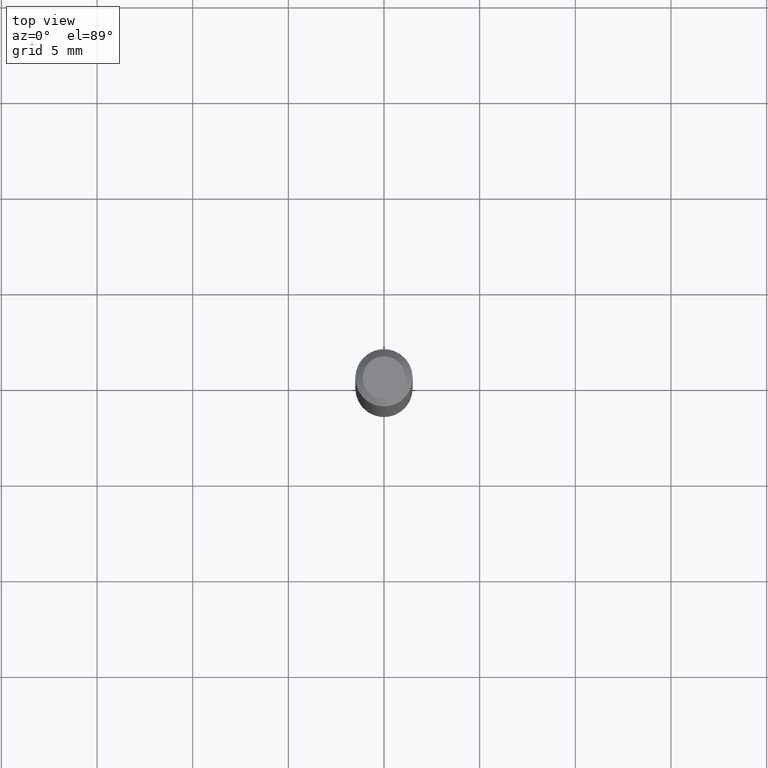
[diagram: clean part render]
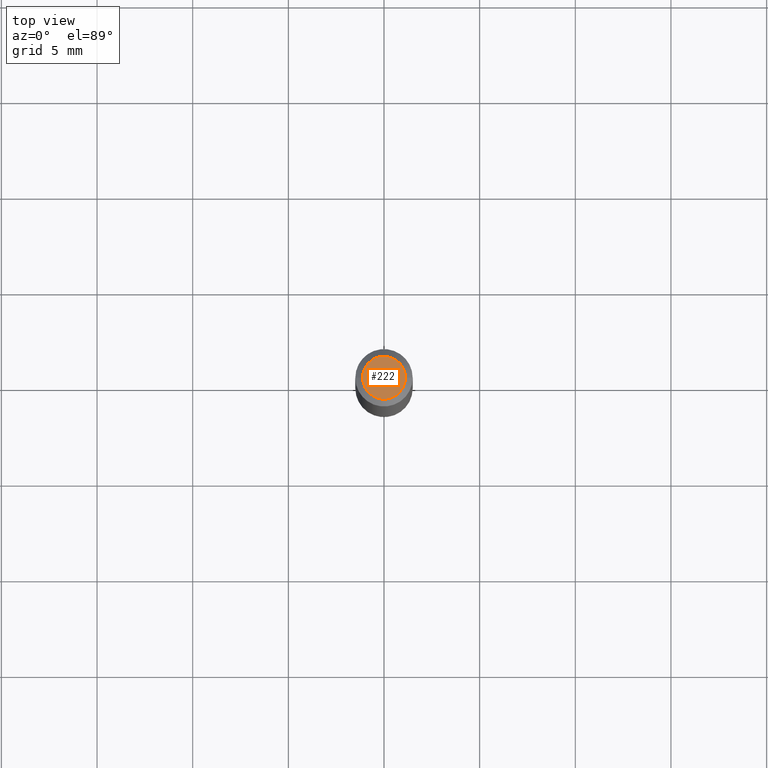
[diagram: same view with one face highlighted and labeled with its STEP entity id]
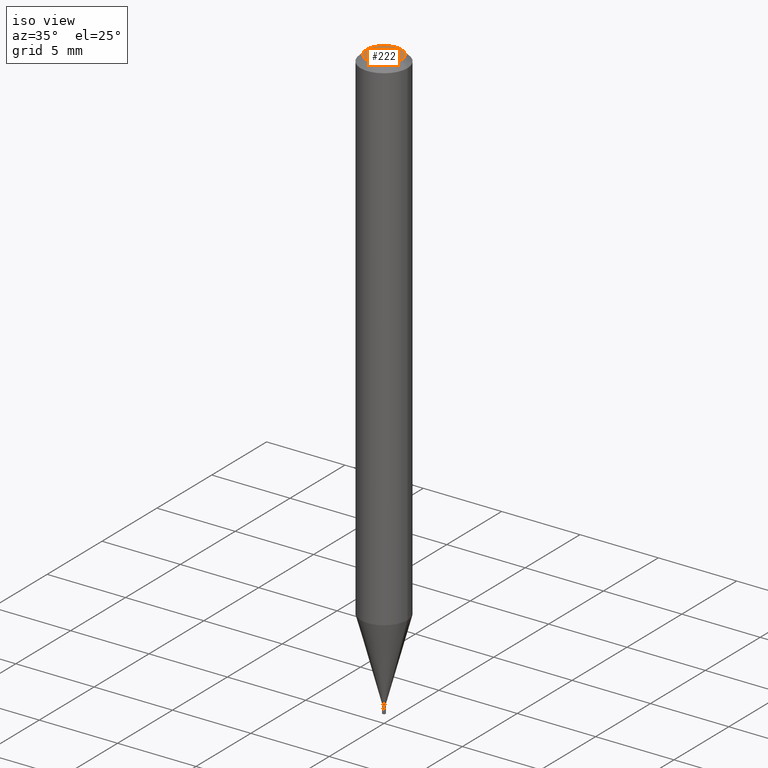
[diagram: same view with one face highlighted and labeled with its STEP entity id]
A machine part, top view. The second image highlights one B-rep face of the part: STEP entity #222.
A second angle (iso view) of the same face is appended — the face is thin or edge-on in the first view.
In plain terms, the highlighted planar face has unit normal (0, -0, -1).
Its self-contained STEP definition (entity closure, byte-faithful):
#16 = AXIS2_PLACEMENT_3D ( 'NONE', #360, #25, #386 ) ;
#25 = DIRECTION ( 'NONE',  ( -2.445468806185136597E-29, 3.491481338843145583E-15, 1.000000000000000000 ) ) ;
#82 = CIRCLE ( 'NONE', #284, 0.04404999999999999888 ) ;
#84 = PLANE ( 'NONE',  #299 ) ;
#99 = ORIENTED_EDGE ( 'NONE', *, *, #277, .T. ) ;
#116 = DIRECTION ( 'NONE',  ( 2.438088387897960049E-29, -3.491481338843145188E-15, -1.000000000000000000 ) ) ;
#130 = EDGE_CURVE ( 'NONE', #304, #348, #363, .T. ) ;
#141 = CARTESIAN_POINT ( 'NONE',  ( 1.050665501000263892E-45, -1.500071880218040753E-31, -4.296376622522831856E-17 ) ) ;
#149 = CARTESIAN_POINT ( 'NONE',  ( 3.075995059520799729E-16, 0.04404999999999999888, -1.752816360886547343E-16 ) ) ;
#191 = CARTESIAN_POINT ( 'NONE',  ( 0.04404999999999999888, -3.798447818264461065E-16, -4.296376622522591500E-17 ) ) ;
#219 = CARTESIAN_POINT ( 'NONE',  ( -0.04404999999999999888, 3.337856159934033646E-16, -4.296376622523056188E-17 ) ) ;
#222 = ADVANCED_FACE ( 'NONE', ( #441 ), #84, .F. ) ;
#274 = EDGE_LOOP ( 'NONE', ( #338, #99 ) ) ;
#277 = EDGE_CURVE ( 'NONE', #348, #304, #82, .T. ) ;
#284 = AXIS2_PLACEMENT_3D ( 'NONE', #141, #303, #362 ) ;
#299 = AXIS2_PLACEMENT_3D ( 'NONE', #149, #116, #369 ) ;
#303 = DIRECTION ( 'NONE',  ( -2.445468806185136597E-29, 3.491481338843145583E-15, 1.000000000000000000 ) ) ;
#304 = VERTEX_POINT ( 'NONE', #219 ) ;
#338 = ORIENTED_EDGE ( 'NONE', *, *, #130, .T. ) ;
#348 = VERTEX_POINT ( 'NONE', #191 ) ;
#360 = CARTESIAN_POINT ( 'NONE',  ( 1.050665501000263892E-45, -1.500071880218040753E-31, -4.296376622522831856E-17 ) ) ;
#362 = DIRECTION ( 'NONE',  ( 1.000000000000000000, -6.982962677686265922E-15, 4.871327091275910156E-29 ) ) ;
#363 = CIRCLE ( 'NONE', #16, 0.04404999999999999888 ) ;
#369 = DIRECTION ( 'NONE',  ( -1.000000000000000000, 6.982962677686265922E-15, -4.876176775795935793E-29 ) ) ;
#386 = DIRECTION ( 'NONE',  ( 1.000000000000000000, -6.982962677686265922E-15, 4.871327091275910156E-29 ) ) ;
#441 = FACE_OUTER_BOUND ( 'NONE', #274, .T. ) ;